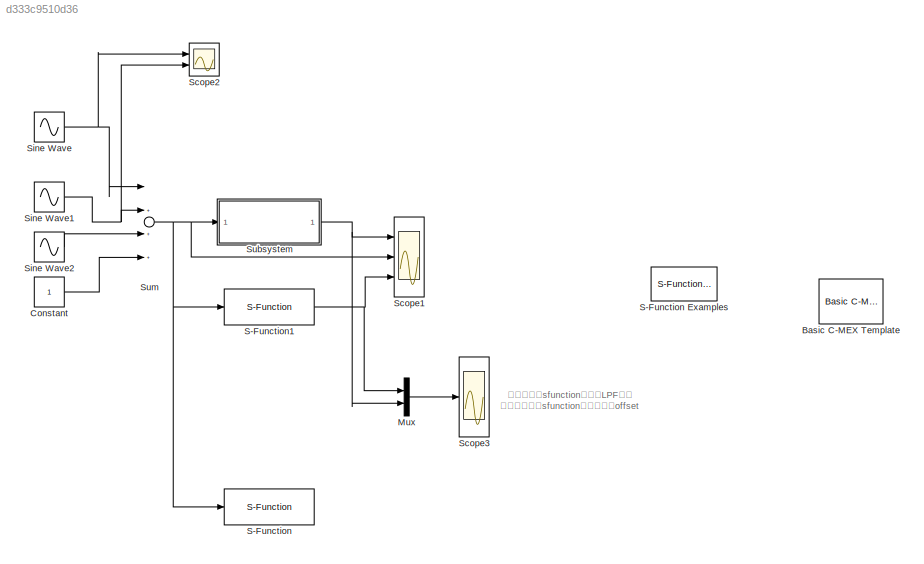
MODEL slx_d333c9510d36
KIND model
CONFIG AbsTol = auto
CONFIG EnableMultiTasking = off
CONFIG FixedStep = Ts
CONFIG InitFcn = fs=1e6; %100kHz\nTs=1/fs;
CONFIG MaxStep = auto
CONFIG MinStep = auto
CONFIG RelTol = 1e-3
CONFIG SampleTimeConstraint = Unconstrained
CONFIG Solver = FixedStepAuto
CONFIG SolverName = FixedStepAuto
CONFIG StartTime = 0.0
CONFIG StopTime = 5/100
BLOCK [Reference] Basic C-MEX Template   REF=sfundemos/C-file
S-functions/Basic C-MEX
Template

  Ports = []
  SourceBlock = sfundemos/C-file\nS-functions/Basic C-MEX\nTemplate
BLOCK [Constant] Constant
BLOCK [Mux] Mux
  DisplayOption = bar
  Inputs = 2
  Ports = [2, 1]
BLOCK [S-Function] S-Function
  EnableBusSupport = off
  FunctionName = test
  Ports = [1, 1]
  SFcnIsStateOwnerBlock = off
  SFunctionDeploymentMode = off
BLOCK [Reference] S-Function Examples  REF=simulink/User-Defined
Functions/S-Function Examples
  Ports = []
  SourceBlock = simulink/User-Defined\nFunctions/S-Function Examples
  SourceProductBaseCode = SL
  SourceProductName = Simulink
  SourceType = S-Function Examples
BLOCK [S-Function] S-Function1
  EnableBusSupport = off
  FunctionName = Math_1st_Order_LPF
  Parameters = 1/(2*pi*100),[10*Ts Ts]
  Ports = [1, 1]
  SFcnIsStateOwnerBlock = off
  SFunctionDeploymentMode = off
BLOCK [Scope] Scope1
  Floating = off
  NumInputPorts = 3
  Ports = [3]
  ScopeSpecificationString = Simulink.scopes.TimeScopeBlockCfg('CurrentConfiguration', extmgr.ConfigurationSet(extmgr.Configuration('Core','General UI',true,'FigureColor',[1 1 1]),extmgr.Configuration('Core','Source UI',true),extmgr.Configuration('Sources','WiredSimulink',true),extmgr.Configuration('Visuals','Time Domain',true,'SerializedDisplays',{struct('MinYLimReal','-0.21819','MaxYLimReal','2.02617','YLabelReal','','MinYL...<+2956ch>
BLOCK [Scope] Scope2
  Floating = off
  NumInputPorts = 2
  Ports = [2]
  ScopeSpecificationString = Simulink.scopes.TimeScopeBlockCfg('CurrentConfiguration', extmgr.ConfigurationSet(extmgr.Configuration('Core','General UI',true,'FigureColor',[1 1 1]),extmgr.Configuration('Core','Source UI',true),extmgr.Configuration('Sources','WiredSimulink',true,'DataLoggingVariableName','ScopeData1'),extmgr.Configuration('Visuals','Time Domain',true,'SerializedDisplays',{struct('MinYLimReal','-2.66102','MaxYLi...<+2394ch>
BLOCK [Scope] Scope3
  Floating = off
  NumInputPorts = 1
  Ports = [1]
  ScopeSpecificationString = Simulink.scopes.TimeScopeBlockCfg('CurrentConfiguration', extmgr.ConfigurationSet(extmgr.Configuration('Core','General UI',true,'FigureColor',[1 1 1]),extmgr.Configuration('Core','Source UI',true),extmgr.Configuration('Sources','WiredSimulink',true,'DataLoggingVariableName','ScopeData1'),extmgr.Configuration('Visuals','Time Domain',true,'SerializedDisplays',{struct('MinYLimReal','-0.03732','MaxYLi...<+1835ch>
BLOCK [Sin] Sine Wave
  Frequency = 100*2*pi
  Ports = [0, 1]
  SampleTime = Ts
BLOCK [Sin] Sine Wave1
  Frequency = 1000*2*pi
  Ports = [0, 1]
  SampleTime = Ts
BLOCK [Sin] Sine Wave2
  Frequency = 1e4*2*pi
  Ports = [0, 1]
  SampleTime = Ts
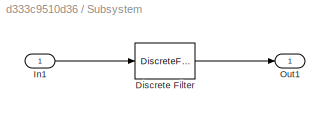
BLOCK [SubSystem] Subsystem
  Ports = [1, 1]
  RequestExecContextInheritance = off
BLOCK [DiscreteFilter] Subsystem/Discrete Filter
  Denominator = [1+Tf/Tsample -Tf/Tsample]
  InputPortMap = u0
  Ports = [1, 1]
  SampleTime = Tsample
BLOCK [Inport] Subsystem/In1
  IconDisplay = Port number
BLOCK [Outport] Subsystem/Out1
  IconDisplay = Port number
BLOCK [Sum] Sum
  InputSameDT = off
  Inputs = |++++
  OutDataTypeStr = Inherit: Inherit via internal rule
  Ports = [4, 1]
  SaturateOnIntegerOverflow = off
ANNOTATION (root): 第一步、用sfunction实现了LPF模块 第二步、更改sfunction的采样时间offset
LINE Constant:1 -> Sum:4
LINE Mux:1 -> Scope3:1
NET S-Function1:1 -> Mux:1, Scope1:3
NET Sine Wave1:1 -> Scope2:2, Sum:2
LINE Sine Wave2:1 -> Sum:3
NET Sine Wave:1 -> Scope2:1, Sum:1
LINE Subsystem/Discrete Filter:1 -> Subsystem/Out1:1
LINE Subsystem/In1:1 -> Subsystem/Discrete Filter:1
NET Subsystem:1 -> Mux:2, Scope1:1
NET Sum:1 -> S-Function1:1, S-Function:1, Scope1:2, Subsystem:1
note: NET lines group one-source signal fan-out (src -> all destinations, sorted); 1:1 wires keep LINE
